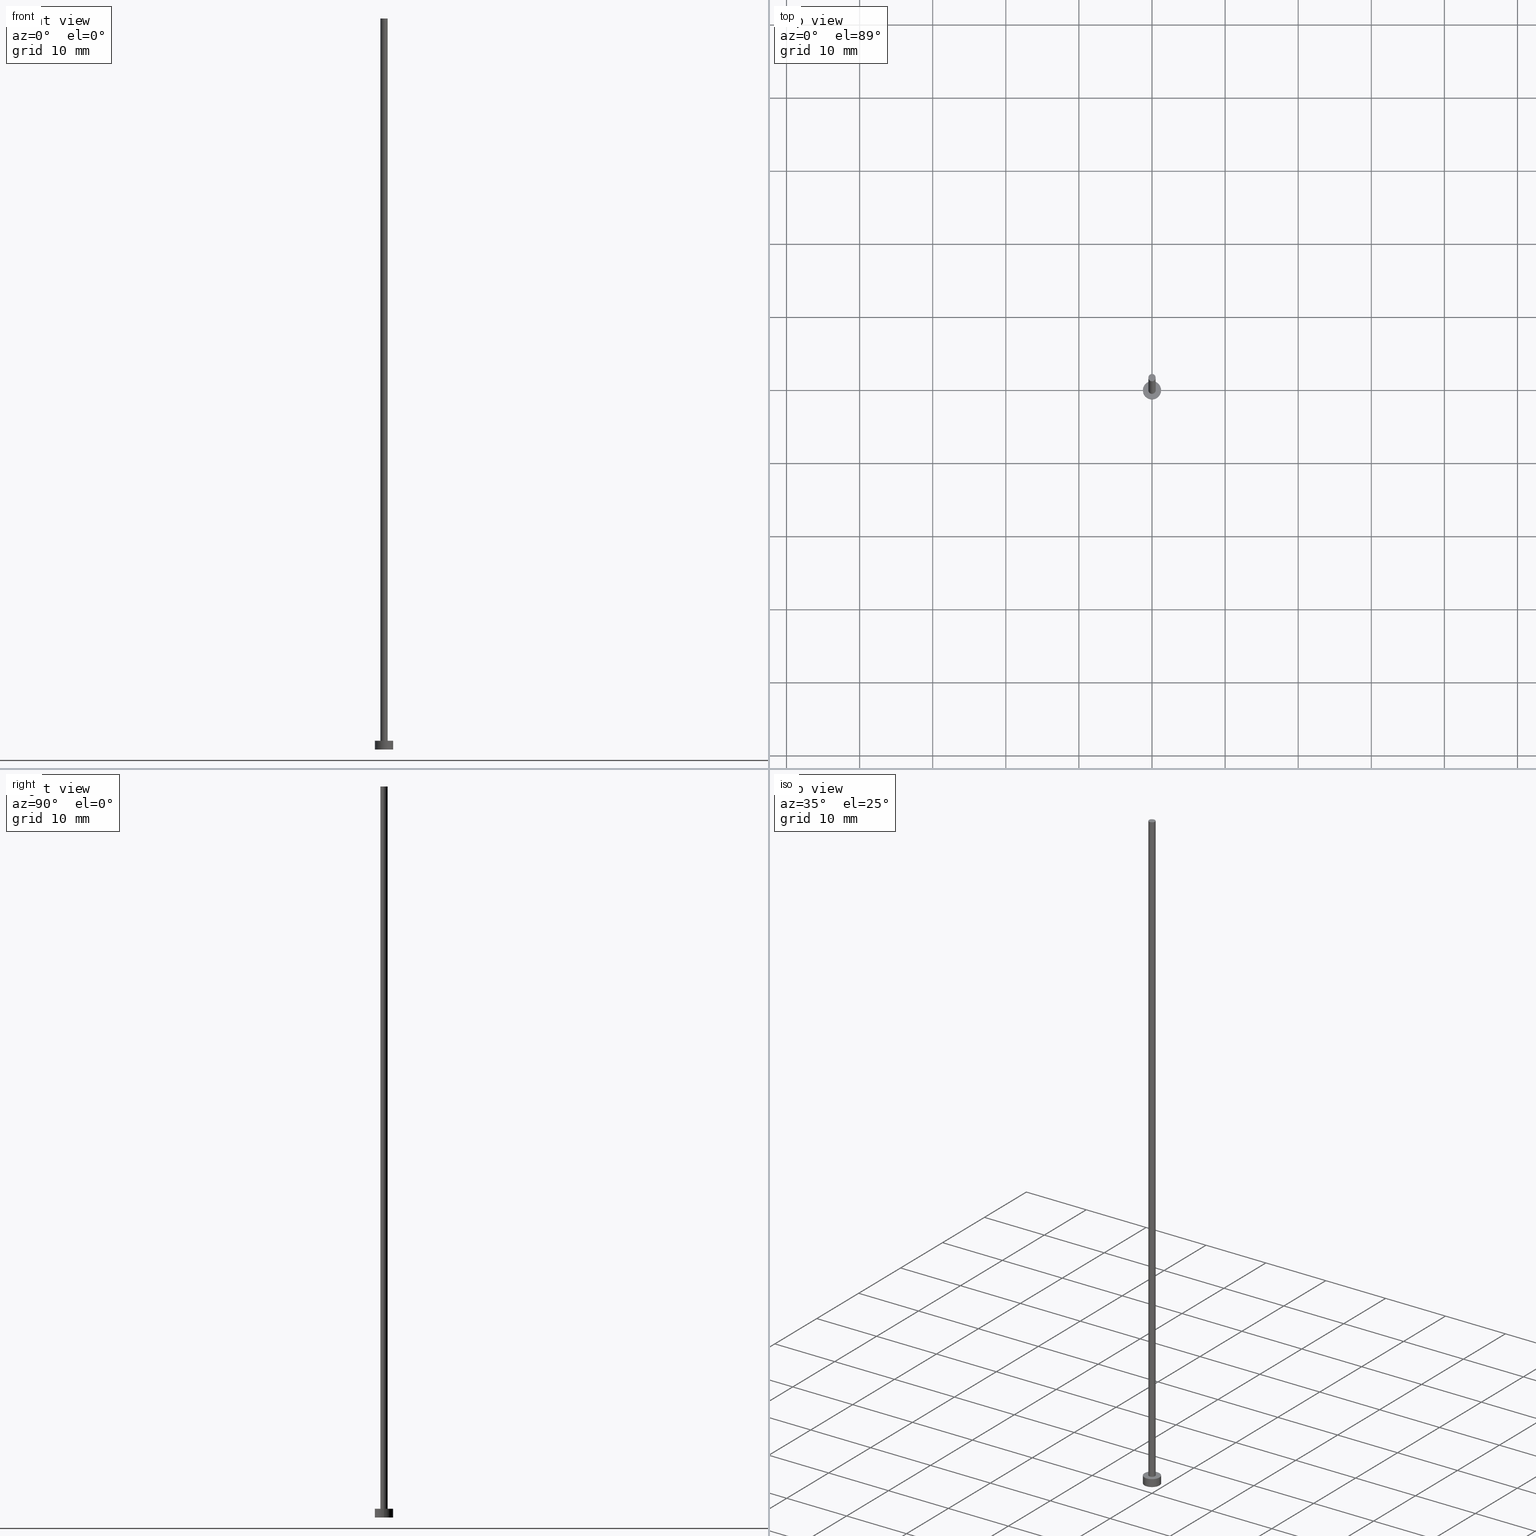
[diagram: canonical four-view strip — front | top / right | iso, engineering-drawing reading convention]
A machine part, canonical four-view strip (front | top / right | iso — engineering-drawing reading convention). The complete STEP part file that produces these views, byte-faithful:
ISO-10303-21;
HEADER;
FILE_DESCRIPTION (( 'STEP AP203' ),
    '1' );
FILE_NAME ('3c1d.STEP',
    '2024-04-26T12:36:43',
    ( '' ),
    ( '' ),
    'SwSTEP 2.0',
    'SolidWorks 2019',
    '' );
FILE_SCHEMA (( 'CONFIG_CONTROL_DESIGN' ));
ENDSEC;

DATA;
#1 = DIRECTION ( 'NONE',  ( 1.000000000000000000, 0.000000000000000000, 0.000000000000000000 ) ) ;
#2 = CIRCLE ( 'NONE', #157, 0.5000000000000000000 ) ;
#3 = LOCAL_TIME ( 14, 36, 43.00000000000000000, #88 ) ;
#4 = DATE_TIME_ROLE ( 'classification_date' ) ;
#5 = ORIENTED_EDGE ( 'NONE', *, *, #233, .T. ) ;
#6 = CARTESIAN_POINT ( 'NONE',  ( -0.5000000000000000000, 0.000000000000000000, 100.0000000000000000 ) ) ;
#7 = ORIENTED_EDGE ( 'NONE', *, *, #10, .T. ) ;
#8 = AXIS2_PLACEMENT_3D ( 'NONE', #117, #19, #232 ) ;
#9 = ORIENTED_EDGE ( 'NONE', *, *, #48, .F. ) ;
#10 = EDGE_CURVE ( 'NONE', #25, #229, #172, .T. ) ;
#11 = ORIENTED_EDGE ( 'NONE', *, *, #81, .T. ) ;
#12 = DIRECTION ( 'NONE',  ( 0.000000000000000000, 0.000000000000000000, 1.000000000000000000 ) ) ;
#13 = VECTOR ( 'NONE', #201, 1000.000000000000000 ) ;
#14 = AXIS2_PLACEMENT_3D ( 'NONE', #161, #80, #141 ) ;
#15 = FACE_OUTER_BOUND ( 'NONE', #74, .T. ) ;
#16 = EDGE_CURVE ( 'NONE', #208, #31, #222, .T. ) ;
#17 = FACE_OUTER_BOUND ( 'NONE', #112, .T. ) ;
#18 = UNCERTAINTY_MEASURE_WITH_UNIT (LENGTH_MEASURE( 1.000000000000000082E-05 ), #128, 'distance_accuracy_value', 'NONE');
#19 = DIRECTION ( 'NONE',  ( -0.000000000000000000, -0.000000000000000000, -1.000000000000000000 ) ) ;
#20 = PRODUCT_DEFINITION_SHAPE ( 'NONE', 'NONE',  #173 ) ;
#21 = DIRECTION ( 'NONE',  ( -1.000000000000000000, 0.000000000000000000, 0.000000000000000000 ) ) ;
#22 = DIRECTION ( 'NONE',  ( 0.000000000000000000, 0.000000000000000000, 1.000000000000000000 ) ) ;
#23 = DATE_AND_TIME ( #149, #52 ) ;
#24 = PERSON_AND_ORGANIZATION_ROLE ( 'classification_officer' ) ;
#25 = VERTEX_POINT ( 'NONE', #6 ) ;
#26 = APPROVAL_PERSON_ORGANIZATION ( #192, #130, #175 ) ;
#27 = ORIENTED_EDGE ( 'NONE', *, *, #119, .T. ) ;
#28 = ORIENTED_EDGE ( 'NONE', *, *, #233, .F. ) ;
#29 = ADVANCED_FACE ( 'NONE', ( #32, #184 ), #33, .T. ) ;
#30 = ORIENTED_EDGE ( 'NONE', *, *, #119, .F. ) ;
#31 = VERTEX_POINT ( 'NONE', #97 ) ;
#32 = FACE_BOUND ( 'NONE', #133, .T. ) ;
#33 = PLANE ( 'NONE',  #238 ) ;
#34 = PRODUCT_RELATED_PRODUCT_CATEGORY ( 'detail', '', ( #221 ) ) ;
#35 = CYLINDRICAL_SURFACE ( 'NONE', #46, 1.250000000000000000 ) ;
#36 = DIRECTION ( 'NONE',  ( 1.000000000000000000, 0.000000000000000000, -0.000000000000000000 ) ) ;
#37 = DESIGN_CONTEXT ( 'detailed design', #121, 'design' ) ;
#38 = APPROVAL ( #170, 'NEUR�EN�' ) ;
#39 = DIRECTION ( 'NONE',  ( -0.000000000000000000, -0.000000000000000000, -1.000000000000000000 ) ) ;
#40 = CARTESIAN_POINT ( 'NONE',  ( 0.000000000000000000, 0.000000000000000000, 0.000000000000000000 ) ) ;
#41 = FACE_OUTER_BOUND ( 'NONE', #138, .T. ) ;
#42 = AXIS2_PLACEMENT_3D ( 'NONE', #101, #142, #214 ) ;
#43 = APPROVAL_PERSON_ORGANIZATION ( #66, #224, #87 ) ;
#44 = PERSON_AND_ORGANIZATION ( #90, #134 ) ;
#45 = DIRECTION ( 'NONE',  ( 0.000000000000000000, 0.000000000000000000, 1.000000000000000000 ) ) ;
#46 = AXIS2_PLACEMENT_3D ( 'NONE', #53, #164, #203 ) ;
#47 = ORIENTED_EDGE ( 'NONE', *, *, #16, .F. ) ;
#48 = EDGE_CURVE ( 'NONE', #116, #31, #215, .T. ) ;
#49 = CALENDAR_DATE ( 2024, 26, 4 ) ;
#50 = ORIENTED_EDGE ( 'NONE', *, *, #186, .T. ) ;
#51 = CIRCLE ( 'NONE', #72, 1.250000000000000000 ) ;
#52 = LOCAL_TIME ( 14, 36, 43.00000000000000000, #225 ) ;
#53 = CARTESIAN_POINT ( 'NONE',  ( 0.000000000000000000, 0.000000000000000000, 1.199999999999999956 ) ) ;
#54 = LINE ( 'NONE', #251, #67 ) ;
#55 = CC_DESIGN_DATE_AND_TIME_ASSIGNMENT ( #69, #4, ( #76 ) ) ;
#56 = DIRECTION ( 'NONE',  ( -0.000000000000000000, -0.000000000000000000, -1.000000000000000000 ) ) ;
#57 = AXIS2_PLACEMENT_3D ( 'NONE', #160, #123, #246 ) ;
#58 = FACE_OUTER_BOUND ( 'NONE', #193, .T. ) ;
#59 = ADVANCED_FACE ( 'NONE', ( #98 ), #253, .T. ) ;
#60 = CARTESIAN_POINT ( 'NONE',  ( 0.000000000000000000, 0.000000000000000000, 1.199999999999999956 ) ) ;
#61 = APPLICATION_PROTOCOL_DEFINITION ( 'international standard', 'config_control_design', 1994, #121 ) ;
#62 = CC_DESIGN_APPROVAL ( #130, ( #76 ) ) ;
#63 = PERSON_AND_ORGANIZATION ( #90, #134 ) ;
#64 = PERSON_AND_ORGANIZATION_ROLE ( 'design_supplier' ) ;
#65 = CC_DESIGN_PERSON_AND_ORGANIZATION_ASSIGNMENT ( #242, #167, ( #173 ) ) ;
#66 = PERSON_AND_ORGANIZATION ( #90, #134 ) ;
#67 = VECTOR ( 'NONE', #166, 1000.000000000000000 ) ;
#68 = PLANE ( 'NONE',  #185 ) ;
#69 = DATE_AND_TIME ( #110, #85 ) ;
#70 = VERTEX_POINT ( 'NONE', #82 ) ;
#71 = SHAPE_DEFINITION_REPRESENTATION ( #20, #127 ) ;
#72 = AXIS2_PLACEMENT_3D ( 'NONE', #120, #159, #230 ) ;
#73 = CC_DESIGN_APPROVAL ( #38, ( #207 ) ) ;
#74 = EDGE_LOOP ( 'NONE', ( #7, #27 ) ) ;
#75 = CARTESIAN_POINT ( 'NONE',  ( 1.250000000000000000, 1.530808498934191571E-16, 0.000000000000000000 ) ) ;
#76 = SECURITY_CLASSIFICATION ( '', '', #151 ) ;
#77 = CARTESIAN_POINT ( 'NONE',  ( -1.250000000000000000, 0.000000000000000000, 1.199999999999999956 ) ) ;
#78 = DIRECTION ( 'NONE',  ( -0.000000000000000000, -0.000000000000000000, -1.000000000000000000 ) ) ;
#79 = AXIS2_PLACEMENT_3D ( 'NONE', #176, #197, #244 ) ;
#80 = DIRECTION ( 'NONE',  ( 0.000000000000000000, 0.000000000000000000, 1.000000000000000000 ) ) ;
#81 = EDGE_CURVE ( 'NONE', #229, #227, #54, .T. ) ;
#82 = CARTESIAN_POINT ( 'NONE',  ( -0.5000000000000000000, 0.000000000000000000, 1.199999999999999956 ) ) ;
#83 = PERSON_AND_ORGANIZATION_ROLE ( 'creator' ) ;
#84 = PLANE ( 'NONE',  #102 ) ;
#85 = LOCAL_TIME ( 14, 36, 43.00000000000000000, #132 ) ;
#86 = EDGE_CURVE ( 'NONE', #31, #208, #51, .T. ) ;
#87 = APPROVAL_ROLE ( '' ) ;
#88 = COORDINATED_UNIVERSAL_TIME_OFFSET ( 1, 0, .AHEAD. ) ;
#89 = CALENDAR_DATE ( 2024, 26, 4 ) ;
#90 = PERSON ( 'NEUR�EN�', 'NEUR�EN�', 'NEUR�EN�', ('NEUR�EN�'), ('NEUR�EN�'), ('NEUR�EN�') ) ;
#91 = CC_DESIGN_PERSON_AND_ORGANIZATION_ASSIGNMENT ( #190, #126, ( #221 ) ) ;
#92 = APPROVAL_STATUS ( 'not_yet_approved' ) ;
#93 = ORIENTED_EDGE ( 'NONE', *, *, #10, .F. ) ;
#94 = EDGE_CURVE ( 'NONE', #136, #208, #200, .T. ) ;
#95 = CIRCLE ( 'NONE', #204, 1.250000000000000000 ) ;
#96 = EDGE_LOOP ( 'NONE', ( #30, #11, #226, #111 ) ) ;
#97 = CARTESIAN_POINT ( 'NONE',  ( -1.250000000000000000, 0.000000000000000000, 0.000000000000000000 ) ) ;
#98 = FACE_OUTER_BOUND ( 'NONE', #243, .T. ) ;
#99 = CC_DESIGN_PERSON_AND_ORGANIZATION_ASSIGNMENT ( #131, #24, ( #76 ) ) ;
#100 = CYLINDRICAL_SURFACE ( 'NONE', #189, 0.5000000000000000000 ) ;
#101 = CARTESIAN_POINT ( 'NONE',  ( 0.000000000000000000, 0.000000000000000000, 1.199999999999999956 ) ) ;
#102 = AXIS2_PLACEMENT_3D ( 'NONE', #220, #168, #240 ) ;
#103 = CC_DESIGN_APPROVAL ( #224, ( #173 ) ) ;
#104 = APPLICATION_PROTOCOL_DEFINITION ( 'international standard', 'config_control_design', 1994, #171 ) ;
#105 = MECHANICAL_CONTEXT ( 'NONE', #171, 'mechanical' ) ;
#106 = DATE_TIME_ROLE ( 'creation_date' ) ;
#107 = DIRECTION ( 'NONE',  ( 1.000000000000000000, 0.000000000000000000, -0.000000000000000000 ) ) ;
#108 = CARTESIAN_POINT ( 'NONE',  ( 0.000000000000000000, 0.000000000000000000, 0.000000000000000000 ) ) ;
#109 = ADVANCED_FACE ( 'NONE', ( #17 ), #100, .T. ) ;
#110 = CALENDAR_DATE ( 2024, 26, 4 ) ;
#111 = ORIENTED_EDGE ( 'NONE', *, *, #186, .F. ) ;
#112 = EDGE_LOOP ( 'NONE', ( #210, #93, #50, #5 ) ) ;
#113 = ADVANCED_FACE ( 'NONE', ( #58 ), #35, .T. ) ;
#114 = ORIENTED_EDGE ( 'NONE', *, *, #86, .T. ) ;
#115 = ORIENTED_EDGE ( 'NONE', *, *, #86, .F. ) ;
#116 = VERTEX_POINT ( 'NONE', #77 ) ;
#117 = CARTESIAN_POINT ( 'NONE',  ( 0.000000000000000000, 0.000000000000000000, 100.0000000000000000 ) ) ;
#118 = DIRECTION ( 'NONE',  ( 1.000000000000000000, 0.000000000000000000, 0.000000000000000000 ) ) ;
#119 = EDGE_CURVE ( 'NONE', #229, #25, #2, .T. ) ;
#120 = CARTESIAN_POINT ( 'NONE',  ( 0.000000000000000000, 0.000000000000000000, 0.000000000000000000 ) ) ;
#121 = APPLICATION_CONTEXT ( 'configuration controlled 3d designs of mechanical parts and assemblies' ) ;
#122 = CARTESIAN_POINT ( 'NONE',  ( 1.250000000000000000, 1.530808498934191571E-16, 1.199999999999999956 ) ) ;
#123 = DIRECTION ( 'NONE',  ( 0.000000000000000000, 0.000000000000000000, 1.000000000000000000 ) ) ;
#124 = LOCAL_TIME ( 14, 36, 43.00000000000000000, #254 ) ;
#125 = CC_DESIGN_PERSON_AND_ORGANIZATION_ASSIGNMENT ( #237, #64, ( #207 ) ) ;
#126 = PERSON_AND_ORGANIZATION_ROLE ( 'design_owner' ) ;
#127 = ADVANCED_BREP_SHAPE_REPRESENTATION ( '3c1d', ( #236, #165 ), #255 ) ;
#128 =( LENGTH_UNIT ( ) NAMED_UNIT ( * ) SI_UNIT ( .MILLI., .METRE. ) );
#129 = CIRCLE ( 'NONE', #42, 0.5000000000000000000 ) ;
#130 = APPROVAL ( #92, 'NEUR�EN�' ) ;
#131 = PERSON_AND_ORGANIZATION ( #90, #134 ) ;
#132 = COORDINATED_UNIVERSAL_TIME_OFFSET ( 1, 0, .AHEAD. ) ;
#133 = EDGE_LOOP ( 'NONE', ( #28, #140 ) ) ;
#134 = ORGANIZATION ( 'NEUR�EN�', 'NEUR�EN�', '' ) ;
#135 = ORIENTED_EDGE ( 'NONE', *, *, #48, .T. ) ;
#136 = VERTEX_POINT ( 'NONE', #122 ) ;
#137 = APPROVAL_DATE_TIME ( #228, #130 ) ;
#138 = EDGE_LOOP ( 'NONE', ( #115, #47 ) ) ;
#139 = EDGE_CURVE ( 'NONE', #227, #70, #199, .T. ) ;
#140 = ORIENTED_EDGE ( 'NONE', *, *, #139, .F. ) ;
#141 = DIRECTION ( 'NONE',  ( 1.000000000000000000, 0.000000000000000000, 0.000000000000000000 ) ) ;
#142 = DIRECTION ( 'NONE',  ( 0.000000000000000000, 0.000000000000000000, 1.000000000000000000 ) ) ;
#143 = CARTESIAN_POINT ( 'NONE',  ( 0.000000000000000000, 0.000000000000000000, 1.199999999999999956 ) ) ;
#144 = CIRCLE ( 'NONE', #57, 1.250000000000000000 ) ;
#145 = FACE_OUTER_BOUND ( 'NONE', #96, .T. ) ;
#146 = CARTESIAN_POINT ( 'NONE',  ( 0.5000000000000000000, 6.123233995736766036E-17, 100.0000000000000000 ) ) ;
#147 = APPROVAL_DATE_TIME ( #148, #38 ) ;
#148 = DATE_AND_TIME ( #223, #124 ) ;
#149 = CALENDAR_DATE ( 2024, 26, 4 ) ;
#150 = ADVANCED_FACE ( 'NONE', ( #145 ), #212, .T. ) ;
#151 = SECURITY_CLASSIFICATION_LEVEL ( 'unclassified' ) ;
#152 = EDGE_LOOP ( 'NONE', ( #155, #196 ) ) ;
#153 = CARTESIAN_POINT ( 'NONE',  ( 0.000000000000000000, 0.000000000000000000, 0.000000000000000000 ) ) ;
#154 = AXIS2_PLACEMENT_3D ( 'NONE', #250, #78, #202 ) ;
#155 = ORIENTED_EDGE ( 'NONE', *, *, #213, .T. ) ;
#156 = ORIENTED_EDGE ( 'NONE', *, *, #94, .F. ) ;
#157 = AXIS2_PLACEMENT_3D ( 'NONE', #182, #235, #118 ) ;
#158 = CC_DESIGN_SECURITY_CLASSIFICATION ( #76, ( #207 ) ) ;
#159 = DIRECTION ( 'NONE',  ( 0.000000000000000000, 0.000000000000000000, 1.000000000000000000 ) ) ;
#160 = CARTESIAN_POINT ( 'NONE',  ( 0.000000000000000000, 0.000000000000000000, 1.199999999999999956 ) ) ;
#161 = CARTESIAN_POINT ( 'NONE',  ( 0.000000000000000000, 0.000000000000000000, 1.199999999999999956 ) ) ;
#162 = EDGE_CURVE ( 'NONE', #136, #116, #144, .T. ) ;
#163 = CLOSED_SHELL ( 'NONE', ( #150, #59, #113, #29, #249, #109, #241 ) ) ;
#164 = DIRECTION ( 'NONE',  ( -0.000000000000000000, -0.000000000000000000, -1.000000000000000000 ) ) ;
#165 = AXIS2_PLACEMENT_3D ( 'NONE', #108, #219, #1 ) ;
#166 = DIRECTION ( 'NONE',  ( -0.000000000000000000, -0.000000000000000000, -1.000000000000000000 ) ) ;
#167 = PERSON_AND_ORGANIZATION_ROLE ( 'creator' ) ;
#168 = DIRECTION ( 'NONE',  ( 0.000000000000000000, 0.000000000000000000, 1.000000000000000000 ) ) ;
#169 =( NAMED_UNIT ( * ) SI_UNIT ( $, .STERADIAN. ) SOLID_ANGLE_UNIT ( ) );
#170 = APPROVAL_STATUS ( 'not_yet_approved' ) ;
#171 = APPLICATION_CONTEXT ( 'configuration controlled 3d designs of mechanical parts and assemblies' ) ;
#172 = CIRCLE ( 'NONE', #79, 0.5000000000000000000 ) ;
#173 = PRODUCT_DEFINITION ( 'NEZN�M�', '', #207, #37 ) ;
#174 = ORIENTED_EDGE ( 'NONE', *, *, #16, .T. ) ;
#175 = APPROVAL_ROLE ( '' ) ;
#176 = CARTESIAN_POINT ( 'NONE',  ( 0.000000000000000000, 0.000000000000000000, 100.0000000000000000 ) ) ;
#177 = ORIENTED_EDGE ( 'NONE', *, *, #94, .T. ) ;
#178 = CARTESIAN_POINT ( 'NONE',  ( -1.250000000000000000, 0.000000000000000000, 1.199999999999999956 ) ) ;
#179 = APPROVAL_PERSON_ORGANIZATION ( #63, #38, #239 ) ;
#180 = CARTESIAN_POINT ( 'NONE',  ( 0.000000000000000000, 0.000000000000000000, 100.0000000000000000 ) ) ;
#181 = DIRECTION ( 'NONE',  ( -0.000000000000000000, -0.000000000000000000, -1.000000000000000000 ) ) ;
#182 = CARTESIAN_POINT ( 'NONE',  ( 0.000000000000000000, 0.000000000000000000, 100.0000000000000000 ) ) ;
#183 = AXIS2_PLACEMENT_3D ( 'NONE', #153, #45, #194 ) ;
#184 = FACE_OUTER_BOUND ( 'NONE', #152, .T. ) ;
#185 = AXIS2_PLACEMENT_3D ( 'NONE', #40, #22, #107 ) ;
#186 = EDGE_CURVE ( 'NONE', #25, #70, #217, .T. ) ;
#187 = APPROVAL_DATE_TIME ( #205, #224 ) ;
#188 = APPROVAL_STATUS ( 'not_yet_approved' ) ;
#189 = AXIS2_PLACEMENT_3D ( 'NONE', #180, #39, #21 ) ;
#190 = PERSON_AND_ORGANIZATION ( #90, #134 ) ;
#191 =( NAMED_UNIT ( * ) PLANE_ANGLE_UNIT ( ) SI_UNIT ( $, .RADIAN. ) );
#192 = PERSON_AND_ORGANIZATION ( #90, #134 ) ;
#193 = EDGE_LOOP ( 'NONE', ( #156, #245, #135, #114 ) ) ;
#194 = DIRECTION ( 'NONE',  ( 1.000000000000000000, 0.000000000000000000, 0.000000000000000000 ) ) ;
#195 = CC_DESIGN_DATE_AND_TIME_ASSIGNMENT ( #23, #106, ( #173 ) ) ;
#196 = ORIENTED_EDGE ( 'NONE', *, *, #162, .T. ) ;
#197 = DIRECTION ( 'NONE',  ( 0.000000000000000000, 0.000000000000000000, 1.000000000000000000 ) ) ;
#198 = CARTESIAN_POINT ( 'NONE',  ( -0.5000000000000000000, 0.000000000000000000, 100.0000000000000000 ) ) ;
#199 = CIRCLE ( 'NONE', #14, 0.5000000000000000000 ) ;
#200 = LINE ( 'NONE', #248, #13 ) ;
#201 = DIRECTION ( 'NONE',  ( -0.000000000000000000, -0.000000000000000000, -1.000000000000000000 ) ) ;
#202 = DIRECTION ( 'NONE',  ( -1.000000000000000000, 0.000000000000000000, 0.000000000000000000 ) ) ;
#203 = DIRECTION ( 'NONE',  ( -1.000000000000000000, 0.000000000000000000, 0.000000000000000000 ) ) ;
#204 = AXIS2_PLACEMENT_3D ( 'NONE', #60, #12, #218 ) ;
#205 = DATE_AND_TIME ( #89, #3 ) ;
#206 = VECTOR ( 'NONE', #56, 1000.000000000000000 ) ;
#207 = PRODUCT_DEFINITION_FORMATION_WITH_SPECIFIED_SOURCE ( 'LIBOVOLN�', '', #221, .NOT_KNOWN. ) ;
#208 = VERTEX_POINT ( 'NONE', #75 ) ;
#209 = COORDINATED_UNIVERSAL_TIME_OFFSET ( 1, 0, .AHEAD. ) ;
#210 = ORIENTED_EDGE ( 'NONE', *, *, #81, .F. ) ;
#211 = ORIENTED_EDGE ( 'NONE', *, *, #162, .F. ) ;
#212 = CYLINDRICAL_SURFACE ( 'NONE', #8, 0.5000000000000000000 ) ;
#213 = EDGE_CURVE ( 'NONE', #116, #136, #95, .T. ) ;
#214 = DIRECTION ( 'NONE',  ( 1.000000000000000000, 0.000000000000000000, 0.000000000000000000 ) ) ;
#215 = LINE ( 'NONE', #178, #252 ) ;
#216 = CC_DESIGN_PERSON_AND_ORGANIZATION_ASSIGNMENT ( #44, #83, ( #207 ) ) ;
#217 = LINE ( 'NONE', #198, #206 ) ;
#218 = DIRECTION ( 'NONE',  ( 1.000000000000000000, 0.000000000000000000, 0.000000000000000000 ) ) ;
#219 = DIRECTION ( 'NONE',  ( 0.000000000000000000, 0.000000000000000000, 1.000000000000000000 ) ) ;
#220 = CARTESIAN_POINT ( 'NONE',  ( 0.000000000000000000, 0.000000000000000000, 100.0000000000000000 ) ) ;
#221 = PRODUCT ( '3c1d', '3c1d', '', ( #105 ) ) ;
#222 = CIRCLE ( 'NONE', #183, 1.250000000000000000 ) ;
#223 = CALENDAR_DATE ( 2024, 26, 4 ) ;
#224 = APPROVAL ( #188, 'NEUR�EN�' ) ;
#225 = COORDINATED_UNIVERSAL_TIME_OFFSET ( 1, 0, .AHEAD. ) ;
#226 = ORIENTED_EDGE ( 'NONE', *, *, #139, .T. ) ;
#227 = VERTEX_POINT ( 'NONE', #231 ) ;
#228 = DATE_AND_TIME ( #49, #247 ) ;
#229 = VERTEX_POINT ( 'NONE', #146 ) ;
#230 = DIRECTION ( 'NONE',  ( 1.000000000000000000, 0.000000000000000000, 0.000000000000000000 ) ) ;
#231 = CARTESIAN_POINT ( 'NONE',  ( 0.5000000000000000000, 6.123233995736766036E-17, 1.199999999999999956 ) ) ;
#232 = DIRECTION ( 'NONE',  ( -1.000000000000000000, 0.000000000000000000, 0.000000000000000000 ) ) ;
#233 = EDGE_CURVE ( 'NONE', #70, #227, #129, .T. ) ;
#234 = DIRECTION ( 'NONE',  ( 0.000000000000000000, 0.000000000000000000, 1.000000000000000000 ) ) ;
#235 = DIRECTION ( 'NONE',  ( 0.000000000000000000, 0.000000000000000000, 1.000000000000000000 ) ) ;
#236 = MANIFOLD_SOLID_BREP ( 'P�idat vysunut�m3', #163 ) ;
#237 = PERSON_AND_ORGANIZATION ( #90, #134 ) ;
#238 = AXIS2_PLACEMENT_3D ( 'NONE', #143, #234, #36 ) ;
#239 = APPROVAL_ROLE ( '' ) ;
#240 = DIRECTION ( 'NONE',  ( 1.000000000000000000, 0.000000000000000000, -0.000000000000000000 ) ) ;
#241 = ADVANCED_FACE ( 'NONE', ( #15 ), #84, .T. ) ;
#242 = PERSON_AND_ORGANIZATION ( #90, #134 ) ;
#243 = EDGE_LOOP ( 'NONE', ( #211, #177, #174, #9 ) ) ;
#244 = DIRECTION ( 'NONE',  ( 1.000000000000000000, 0.000000000000000000, 0.000000000000000000 ) ) ;
#245 = ORIENTED_EDGE ( 'NONE', *, *, #213, .F. ) ;
#246 = DIRECTION ( 'NONE',  ( 1.000000000000000000, 0.000000000000000000, 0.000000000000000000 ) ) ;
#247 = LOCAL_TIME ( 14, 36, 43.00000000000000000, #209 ) ;
#248 = CARTESIAN_POINT ( 'NONE',  ( 1.250000000000000000, 1.530808498934191571E-16, 1.199999999999999956 ) ) ;
#249 = ADVANCED_FACE ( 'NONE', ( #41 ), #68, .F. ) ;
#250 = CARTESIAN_POINT ( 'NONE',  ( 0.000000000000000000, 0.000000000000000000, 1.199999999999999956 ) ) ;
#251 = CARTESIAN_POINT ( 'NONE',  ( 0.5000000000000000000, 6.123233995736766036E-17, 100.0000000000000000 ) ) ;
#252 = VECTOR ( 'NONE', #181, 1000.000000000000000 ) ;
#253 = CYLINDRICAL_SURFACE ( 'NONE', #154, 1.250000000000000000 ) ;
#254 = COORDINATED_UNIVERSAL_TIME_OFFSET ( 1, 0, .AHEAD. ) ;
#255 =( GEOMETRIC_REPRESENTATION_CONTEXT ( 3 ) GLOBAL_UNCERTAINTY_ASSIGNED_CONTEXT ( ( #18 ) ) GLOBAL_UNIT_ASSIGNED_CONTEXT ( ( #128, #191, #169 ) ) REPRESENTATION_CONTEXT ( 'NONE', 'WORKASPACE' ) );
ENDSEC;
END-ISO-10303-21;
